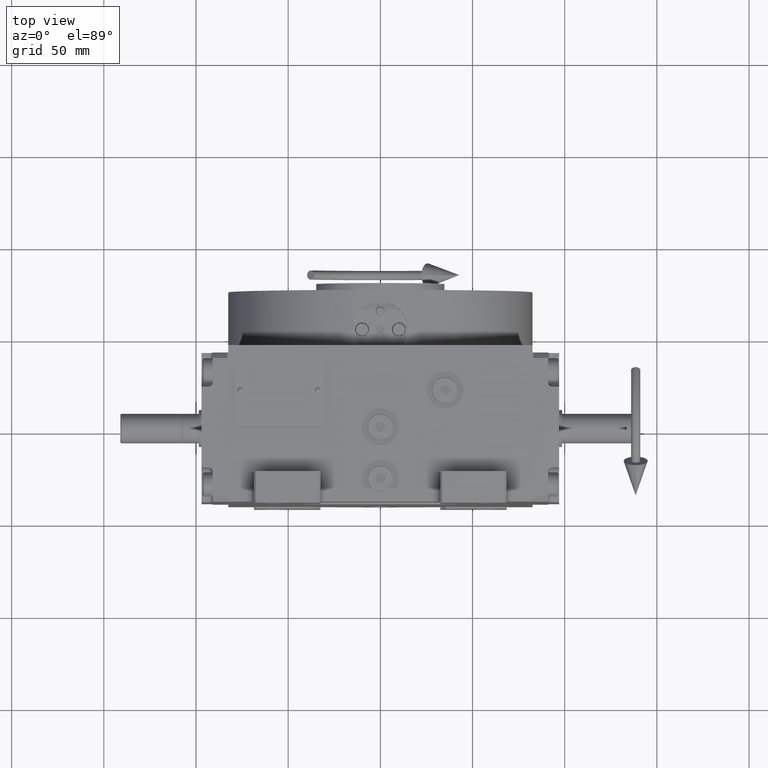
[diagram: clean part render]
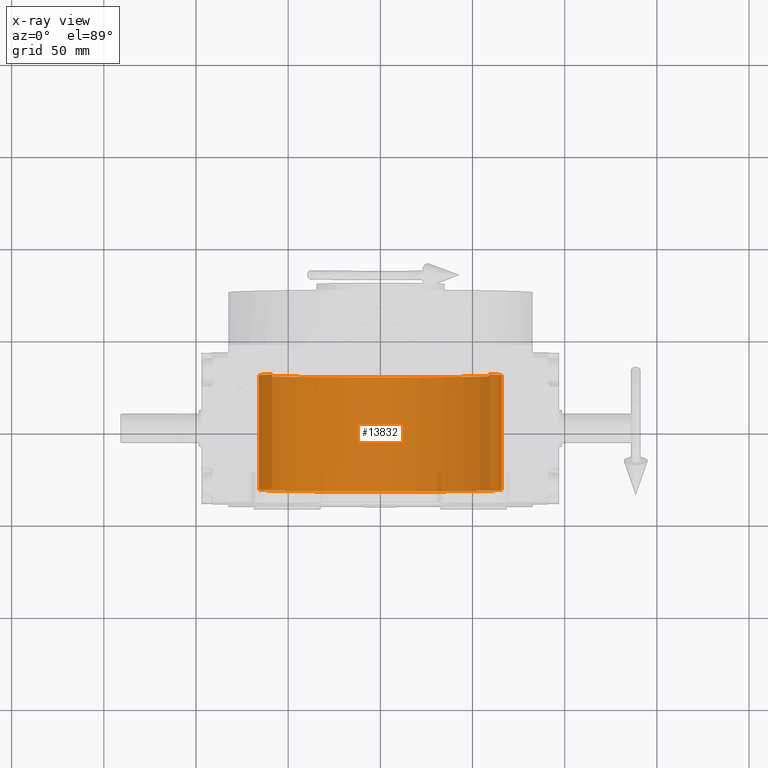
[diagram: x-ray — body ghosted, one internal face saturated and labeled with its STEP entity id]
A machine part, top view, then the same camera in x-ray: the body is ghosted and one INTERNAL B-rep face — a face not visible from any outside direction — is saturated and labeled: STEP entity #13832.
In plain terms, the highlighted cylindrical surface (partial cylindrical patch) has radius 66 mm, axis along (0, 1, 0).
Its self-contained STEP definition (entity closure, byte-faithful):
#788 = VERTEX_POINT ( 'NONE', #43025 ) ;
#4425 = VERTEX_POINT ( 'NONE', #63343 ) ;
#6534 = VECTOR ( 'NONE', #16137, 1000.000000000000000 ) ;
#10627 = DIRECTION ( 'NONE',  ( 0.000000000000000000, 0.000000000000000000, 1.000000000000000000 ) ) ;
#13761 = EDGE_CURVE ( 'NONE', #788, #38130, #60795, .T. ) ;
#13832 = ADVANCED_FACE ( 'NONE', ( #29545 ), #49265, .F. ) ;
#14314 = ORIENTED_EDGE ( 'NONE', *, *, #13761, .T. ) ;
#14732 = DIRECTION ( 'NONE',  ( 0.000000000000000000, -1.000000000000000000, 0.000000000000000000 ) ) ;
#16137 = DIRECTION ( 'NONE',  ( -0.000000000000000000, 1.000000000000000000, -0.000000000000000000 ) ) ;
#18364 = VECTOR ( 'NONE', #14732, 1000.000000000000000 ) ;
#19446 = EDGE_CURVE ( 'NONE', #4425, #63234, #54526, .T. ) ;
#20809 = ORIENTED_EDGE ( 'NONE', *, *, #37188, .T. ) ;
#22761 = CIRCLE ( 'NONE', #59925, 66.00000000000000000 ) ;
#28268 = CARTESIAN_POINT ( 'NONE',  ( 0.000000000000000000, 30.00000000000001421, 0.000000000000000000 ) ) ;
#29230 = EDGE_CURVE ( 'NONE', #788, #63234, #60374, .T. ) ;
#29545 = FACE_OUTER_BOUND ( 'NONE', #54164, .T. ) ;
#37188 = EDGE_CURVE ( 'NONE', #38130, #4425, #22761, .T. ) ;
#38130 = VERTEX_POINT ( 'NONE', #40043 ) ;
#40043 = CARTESIAN_POINT ( 'NONE',  ( 58.78775382679628336, 30.00000000000001421, 30.00000000000000000 ) ) ;
#41413 = DIRECTION ( 'NONE',  ( -0.000000000000000000, 1.000000000000000000, -0.000000000000000000 ) ) ;
#41765 = AXIS2_PLACEMENT_3D ( 'NONE', #54924, #41413, #10627 ) ;
#43025 = CARTESIAN_POINT ( 'NONE',  ( 58.78775382679628336, -31.99999999999998579, 30.00000000000000000 ) ) ;
#43158 = DIRECTION ( 'NONE',  ( -0.000000000000000000, 1.000000000000000000, -0.000000000000000000 ) ) ;
#45761 = CARTESIAN_POINT ( 'NONE',  ( -58.78775382679628336, -31.99999999999998579, 30.00000000000000000 ) ) ;
#49265 = CYLINDRICAL_SURFACE ( 'NONE', #53036, 66.00000000000000000 ) ;
#49583 = DIRECTION ( 'NONE',  ( -0.000000000000000000, 1.000000000000000000, -0.000000000000000000 ) ) ;
#50112 = ORIENTED_EDGE ( 'NONE', *, *, #29230, .F. ) ;
#53036 = AXIS2_PLACEMENT_3D ( 'NONE', #58973, #49583, #55092 ) ;
#54164 = EDGE_LOOP ( 'NONE', ( #56109, #50112, #14314, #20809 ) ) ;
#54526 = LINE ( 'NONE', #58731, #18364 ) ;
#54924 = CARTESIAN_POINT ( 'NONE',  ( 0.000000000000000000, -31.99999999999998579, 0.000000000000000000 ) ) ;
#55092 = DIRECTION ( 'NONE',  ( 0.000000000000000000, 0.000000000000000000, 1.000000000000000000 ) ) ;
#56109 = ORIENTED_EDGE ( 'NONE', *, *, #19446, .T. ) ;
#58731 = CARTESIAN_POINT ( 'NONE',  ( -58.78775382679628336, 98.15000000000000568, 30.00000000000000000 ) ) ;
#58973 = CARTESIAN_POINT ( 'NONE',  ( 0.000000000000000000, 98.15000000000000568, 0.000000000000000000 ) ) ;
#59925 = AXIS2_PLACEMENT_3D ( 'NONE', #28268, #43158, #62869 ) ;
#60374 = CIRCLE ( 'NONE', #41765, 66.00000000000000000 ) ;
#60470 = CARTESIAN_POINT ( 'NONE',  ( 58.78775382679628336, 98.15000000000000568, 30.00000000000000000 ) ) ;
#60795 = LINE ( 'NONE', #60470, #6534 ) ;
#62869 = DIRECTION ( 'NONE',  ( 0.000000000000000000, 0.000000000000000000, 1.000000000000000000 ) ) ;
#63234 = VERTEX_POINT ( 'NONE', #45761 ) ;
#63343 = CARTESIAN_POINT ( 'NONE',  ( -58.78775382679628336, 30.00000000000001421, 30.00000000000000000 ) ) ;